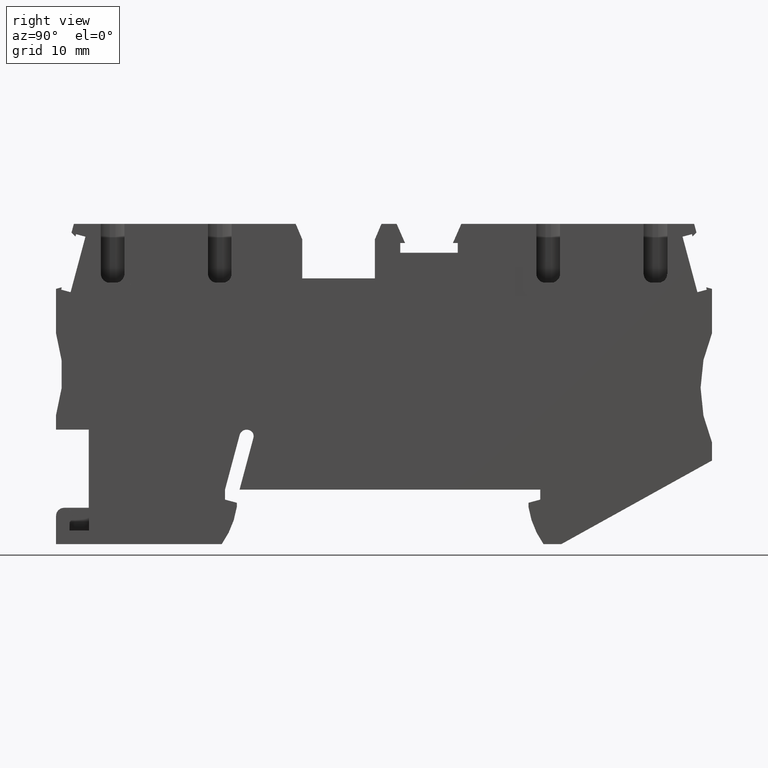
[diagram: clean part render]
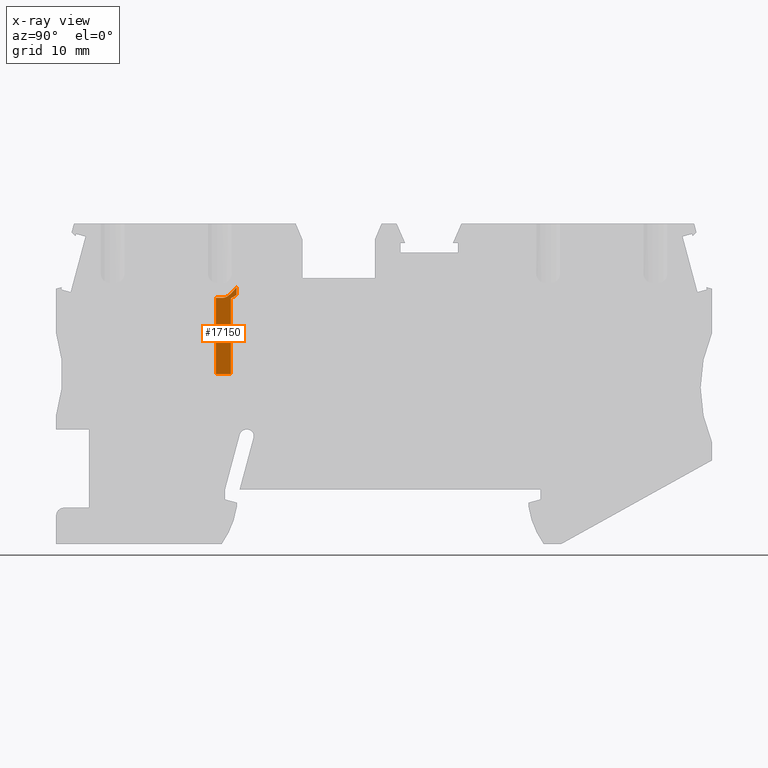
[diagram: x-ray — body ghosted, one internal face saturated and labeled with its STEP entity id]
A machine part, right view, then the same camera in x-ray: the body is ghosted and one INTERNAL B-rep face — a face not visible from any outside direction — is saturated and labeled: STEP entity #17150.
In plain terms, the highlighted planar face has unit normal (-1, 0, -0).
Its self-contained STEP definition (entity closure, byte-faithful):
#14670=CARTESIAN_POINT('',(15.5344617332381,24.6591403803887,
-2.40000000001714));
#14680=DIRECTION('',(-0.121869343405149,0.992546151641322,
1.2819751242557E-15));
#14690=DIRECTION('',(-0.992546151641323,-0.121869343405148,
-1.07403295171097E-12));
#14700=AXIS2_PLACEMENT_3D('',#14670,#14680,#14690);
#14710=CONICAL_SURFACE('',#14700,2.4,0.523598775598297);
#15100=CARTESIAN_POINT('',(17.2361103568409,23.5188635156278,
-0.950000000015455));
#15110=VERTEX_POINT('',#15100);
#15550=CARTESIAN_POINT('',(17.1314843598508,24.3709738805133,
-0.950000000015453));
#15560=VERTEX_POINT('',#15550);
#15590=CARTESIAN_POINT('',(16.2807575361469,31.2995878483283,
-0.950000000015444));
#15600=DIRECTION('',(0.121869343405148,-0.992546151641323,
-1.31792281172252E-15));
#15610=VECTOR('',#15600,1.);
#15620=LINE('',#15590,#15610);
#15630=EDGE_CURVE('',#15560,#15110,#15620,.T.);
#15750=CARTESIAN_POINT('',(15.1718204877308,21.9447125968276,
-0.950000000017863));
#15760=DIRECTION('',(1.06586665856897E-12,1.32199789835444E-13,-1.));
#15770=DIRECTION('',(0.992546151641323,0.121869343405148,
1.07403295171097E-12));
#15780=AXIS2_PLACEMENT_3D('',#15750,#15760,#15770);
#15790=PLANE('',#15780);
#15800=CARTESIAN_POINT('',(15.6604161913688,31.2234195086997,
-0.950000000016116));
#15810=DIRECTION('',(-0.121869343405145,0.992546151641323,
1.31792281172585E-15));
#15820=VECTOR('',#15810,1.);
#15830=LINE('',#15800,#15820);
#15840=CARTESIAN_POINT('',(17.6773538247231,14.7967806990423,
-0.950000000016137));
#15850=VERTEX_POINT('',#15840);
#15860=CARTESIAN_POINT('',(16.6597448234539,23.0845409336045,
-0.950000000016126));
#15870=VERTEX_POINT('',#15860);
#15880=EDGE_CURVE('',#15850,#15870,#15830,.T.);
#15890=ORIENTED_EDGE('',*,*,#15880,.F.);
#15900=CARTESIAN_POINT('',(46.5471298868645,45.606300995116,
-0.949999999981293));
#15910=DIRECTION('',(0.798635510047336,0.601815023151993,
9.30798782089184E-13));
#15920=VECTOR('',#15910,1.);
#15930=LINE('',#15900,#15920);
#15940=EDGE_CURVE('',#15870,#15110,#15930,.T.);
#15950=ORIENTED_EDGE('',*,*,#15940,.F.);
#15960=ORIENTED_EDGE('',*,*,#15630,.T.);
#15970=CARTESIAN_POINT('',(17.131484359785,24.3709738805907,
-0.950000000015454));
#15980=CARTESIAN_POINT('',(17.1098760532251,24.3354760432195,
-0.950000000015481));
#15990=CARTESIAN_POINT('',(17.0880689836512,24.3001034716769,
-0.950000000015509));
#16000=CARTESIAN_POINT('',(17.0660387305153,24.2648762699144,
-0.950000000015537));
#16010=CARTESIAN_POINT('',(17.0440084802944,24.2296490728129,
-0.950000000015565));
#16020=CARTESIAN_POINT('',(17.0217550612005,24.1945670937419,
-0.950000000015594));
#16030=CARTESIAN_POINT('',(16.9992489987451,24.1596536393544,
-0.950000000015622));
#16040=CARTESIAN_POINT('',(16.9767429502312,24.1247402065943,
-0.950000000015651));
#16050=CARTESIAN_POINT('',(16.9539842633671,24.089995080337,
-0.95000000001568));
#16060=CARTESIAN_POINT('',(16.9309373737007,24.0554461323125,
-0.950000000015709));
#16070=CARTESIAN_POINT('',(16.9078905159689,24.0208972321605,
-0.950000000015738));
#16080=CARTESIAN_POINT('',(16.8845554415984,23.9865441967547,
-0.95000000002703));
#16090=CARTESIAN_POINT('',(16.8608892325772,23.9524213975848,
-0.950000000027059));
#16100=CARTESIAN_POINT('',(16.8372201277653,23.9182944231588,
-0.950000000027089));
#16110=CARTESIAN_POINT('',(16.8132404008132,23.8844251755192,
-0.950000000015857));
#16120=CARTESIAN_POINT('',(16.7888098074132,23.8507371074819,
-0.950000000015888));
#16130=CARTESIAN_POINT('',(16.7643847928107,23.8170567322134,
-0.950000000015918));
#16140=CARTESIAN_POINT('',(16.739539840428,23.7836018395118,
-0.950000000015949));
#16150=CARTESIAN_POINT('',(16.714239960513,23.7504717393736,
-0.95000000001598));
#16160=CARTESIAN_POINT('',(16.6889400042113,23.7173415392072,
-0.950000000016011));
#16170=CARTESIAN_POINT('',(16.6631851042557,23.6845355216335,
-0.950000000016043));
#16180=CARTESIAN_POINT('',(16.6369238598476,23.6521599574129,
-0.950000000016076));
#16190=CARTESIAN_POINT('',(16.6106625616995,23.6197843269402,
-0.950000000016108));
#16200=CARTESIAN_POINT('',(16.5838946587938,23.5878380068375,
-0.950000000016141));
#16210=CARTESIAN_POINT('',(16.556547805625,23.5564391351566,
-0.950000000016174));
#16220=CARTESIAN_POINT('',(16.5292010146546,23.52504033489,
-0.950000000016207));
#16230=CARTESIAN_POINT('',(16.5012745170952,23.4941870205985,
-0.950000000016242));
#16240=CARTESIAN_POINT('',(16.4726710277304,23.4640188984501,
-0.950000000016276));
#16250=CARTESIAN_POINT('',(16.4583692138738,23.4489347644179,
-0.950000000016293));
#16260=CARTESIAN_POINT('',(16.44389755172,23.4340221380936,
-0.95000000001631));
#16270=CARTESIAN_POINT('',(16.4292411960773,23.419301559737,
-0.950000000016328));
#16280=CARTESIAN_POINT('',(16.4145848659205,23.4045810069781,
-0.950000000016345));
#16290=CARTESIAN_POINT('',(16.399743766843,23.3900523815637,
-0.950000000016363));
#16300=CARTESIAN_POINT('',(16.3847013559098,23.375739201975,
-0.950000000016381));
#16310=CARTESIAN_POINT('',(16.3696589864224,23.3614260618231,
-0.950000000016399));
#16320=CARTESIAN_POINT('',(16.3544151990447,23.3473282220163,
-0.950000000016881));
#16330=CARTESIAN_POINT('',(16.3389519009798,23.3334729743874,
-0.9500000000169));
#16340=CARTESIAN_POINT('',(16.3234946084624,23.3196231077804,
-0.950000000016918));
#16350=CARTESIAN_POINT('',(16.3077969173935,23.3059964504642,
-0.950000000025343));
#16360=CARTESIAN_POINT('',(16.291826497184,23.2926185357162,
-0.950000000025362));
#16370=CARTESIAN_POINT('',(16.2598915344479,23.265867629769,
-0.950000000025399));
#16380=CARTESIAN_POINT('',(16.2269143588668,23.2401534077629,
-0.950000000016567));
#16390=CARTESIAN_POINT('',(16.1929024158997,23.215934121038,
-0.950000000016606));
#16400=CARTESIAN_POINT('',(16.1588902989526,23.191714710425,
-0.950000000016646));
#16410=CARTESIAN_POINT('',(16.123842214306,23.168990631749,
-0.950000000016686));
#16420=CARTESIAN_POINT('',(16.087760967399,23.1482251908391,
-0.950000000016727));
#16430=CARTESIAN_POINT('',(16.0697203583345,23.1378424786653,
-0.950000000016748));
#16440=CARTESIAN_POINT('',(16.0514215508046,23.1279495010977,
-0.950000000017467));
#16450=CARTESIAN_POINT('',(16.0328654015221,23.1186033355876,
-0.950000000017488));
#16460=CARTESIAN_POINT('',(16.0143045198812,23.1092547865332,
-0.950000000017509));
#16470=CARTESIAN_POINT('',(15.9955202683465,23.1004669292,
-0.950000000016884));
#16480=CARTESIAN_POINT('',(15.976366445004,23.0922350784411,
-0.950000000016905));
#16490=CARTESIAN_POINT('',(15.9572212245412,23.0840069249921,
-0.950000000016927));
#16500=CARTESIAN_POINT('',(15.9377541799008,23.0763596398707,
-0.950000000017449));
#16510=CARTESIAN_POINT('',(15.9180164933605,23.0693746131272,
-0.950000000017471));
#16520=CARTESIAN_POINT('',(15.8982789993488,23.0623896545182,
-0.950000000017493));
#16530=CARTESIAN_POINT('',(15.8782726263164,23.0560680319243,
-0.950000000017268));
#16540=CARTESIAN_POINT('',(15.8580626238303,23.050474383985,
-0.95000000001729));
#16550=CARTESIAN_POINT('',(15.8378526459534,23.0448807428571,
-0.950000000017313));
#16560=CARTESIAN_POINT('',(15.817441518608,23.0400160374466,
-0.950000000017055));
#16570=CARTESIAN_POINT('',(15.7969034171443,23.0359207419877,
-0.950000000017078));
#16580=CARTESIAN_POINT('',(15.776365136716,23.0318254108433,
-0.9500000000171));
#16590=CARTESIAN_POINT('',(15.7557028415121,23.0285000762432,
-0.950000000017098));
#16600=CARTESIAN_POINT('',(15.7349914331649,23.0259570350636,
-0.95000000001712));
#16610=B_SPLINE_CURVE_WITH_KNOTS('',3,(#15970,#15980,#15990,#16000,
#16010,#16020,#16030,#16040,#16050,#16060,#16070,#16080,#16090,#16100,
#16110,#16120,#16130,#16140,#16150,#16160,#16170,#16180,#16190,#16200,
#16210,#16220,#16230,#16240,#16250,#16260,#16270,#16280,#16290,#16300,
#16310,#16320,#16330,#16340,#16350,#16360,#16370,#16380,#16390,#16400,
#16410,#16420,#16430,#16440,#16450,#16460,#16470,#16480,#16490,#16500,
#16510,#16520,#16530,#16540,#16550,#16560,#16570,#16580,#16590,#16600),
.UNSPECIFIED.,.F.,.F.,(4,3,3,3,3,3,3,3,3,3,3,3,3,3,3,3,3,3,3,3,3,4),(0.,
0.124659623733579,0.249290734639958,0.373894111837329,0.498478468382224,
0.623120804543652,0.74807920827178,0.873155610547789,0.99815314568665,
1.12296953650625,1.18530719705854,1.24761058841865,1.30989812126622,
1.37226997891559,1.49746790769792,1.62257338986924,1.68495913839967,
1.74731785637665,1.80999746825107,1.87287277945515,1.93575379575698,
1.99847696241232),.UNSPECIFIED.);
#16620=SURFACE_CURVE('',#16610,(#14710,#15790),.CURVE_3D.);
#16630=CARTESIAN_POINT('',(15.7349914331649,23.0259570350636,
-0.95000000001712));
#16640=VERTEX_POINT('',#16630);
#16650=EDGE_CURVE('',#15560,#16640,#16620,.T.);
#16660=ORIENTED_EDGE('',*,*,#16650,.F.);
#16670=CARTESIAN_POINT('',(66.7549985572049,29.290426207052,
-0.949999999961911));
#16680=DIRECTION('',(0.992546151641323,0.121869343405148,
1.07403295171097E-12));
#16690=VECTOR('',#16680,1.);
#16700=LINE('',#16670,#16690);
#16710=CARTESIAN_POINT('',(15.13946374221,22.9528354290242,
-0.950000000017764));
#16720=VERTEX_POINT('',#16710);
#16730=EDGE_CURVE('',#16720,#16640,#16700,.T.);
#16740=ORIENTED_EDGE('',*,*,#16730,.T.);
#16750=CARTESIAN_POINT('',(14.9389340422533,24.5860187743456,
-2.40000000001779));
#16760=DIRECTION('',(-0.121869343405151,0.992546151641322,
1.38880638461035E-15));
#16770=DIRECTION('',(-0.992546151641323,-0.121869343405148,
-1.07403295171097E-12));
#16780=AXIS2_PLACEMENT_3D('',#16750,#16760,#16770);
#16790=CONICAL_SURFACE('',#16780,2.4,0.523598775598299);
#16800=CARTESIAN_POINT('',(15.13946374221,22.9528354290242,
-0.950000000017764));
#16810=CARTESIAN_POINT('',(15.1290459426808,22.9515562840831,
-0.950000000017775));
#16820=CARTESIAN_POINT('',(15.1186101543687,22.9504739646769,
-0.950000000017787));
#16830=CARTESIAN_POINT('',(15.1081671617397,22.9495881511368,
-0.950000000017798));
#16840=CARTESIAN_POINT('',(15.0977241475162,22.9487023357649,
-0.950000000017809));
#16850=CARTESIAN_POINT('',(15.0872740319795,22.9480130252823,
-0.95000000001782));
#16860=CARTESIAN_POINT('',(15.0768271363242,22.9475180323443,
-0.950000000017832));
#16870=CARTESIAN_POINT('',(15.0663802092715,22.9470230379187,
-0.950000000017843));
#16880=CARTESIAN_POINT('',(15.0559365976969,22.9467223510014,
-0.950000000017854));
#16890=CARTESIAN_POINT('',(15.0455057978376,22.9466120910981,
-0.950000000017865));
#16900=CARTESIAN_POINT('',(15.0350749561319,22.9465018307525,
-0.950000000017876));
#16910=CARTESIAN_POINT('',(15.0246570102966,22.9465819795592,
-0.950000000029091));
#16920=CARTESIAN_POINT('',(15.0142602729441,22.9468472253547,
-0.950000000029102));
#16930=B_SPLINE_CURVE_WITH_KNOTS('',3,(#16800,#16810,#16820,#16830,
#16840,#16850,#16860,#16870,#16880,#16890,#16900,#16910,#16920),
.UNSPECIFIED.,.F.,.F.,(4,3,3,3,4),(0.,0.0314664441960948,
0.0628765828717202,0.0942127862635576,0.125460890485553),.UNSPECIFIED.);
#16940=SURFACE_CURVE('',#16930,(#16790,#15790),.CURVE_3D.);
#16950=CARTESIAN_POINT('',(15.0142602729554,22.9468472253555,
-0.950000000017899));
#16960=VERTEX_POINT('',#16950);
#16970=EDGE_CURVE('',#16720,#16960,#16940,.T.);
#16980=ORIENTED_EDGE('',*,*,#16970,.F.);
#16990=CARTESIAN_POINT('',(18.3854347648713,-4.50916570598551,
-0.950000000017935));
#17000=DIRECTION('',(0.121869343405031,-0.992546151641337,
-1.31792281184843E-15));
#17010=VECTOR('',#17000,1.);
#17020=LINE('',#16990,#17010);
#17030=CARTESIAN_POINT('',(16.0396526745161,14.595696282424,
-0.95000000001791));
#17040=VERTEX_POINT('',#17030);
#17050=EDGE_CURVE('',#16960,#17040,#17020,.T.);
#17060=ORIENTED_EDGE('',*,*,#17050,.F.);
#17070=CARTESIAN_POINT('',(49.8451007978886,18.7464833863782,
-0.949999999981329));
#17080=DIRECTION('',(0.992546151641323,0.121869343405148,
1.07403295171097E-12));
#17090=VECTOR('',#17080,1.);
#17100=LINE('',#17070,#17090);
#17110=EDGE_CURVE('',#17040,#15850,#17100,.T.);
#17120=ORIENTED_EDGE('',*,*,#17110,.F.);
#17130=EDGE_LOOP('',(#17120,#17060,#16980,#16740,#16660,#15960,#15950,
#15890));
#17140=FACE_OUTER_BOUND('',#17130,.T.);
#17150=ADVANCED_FACE('',(#17140),#15790,.T.);